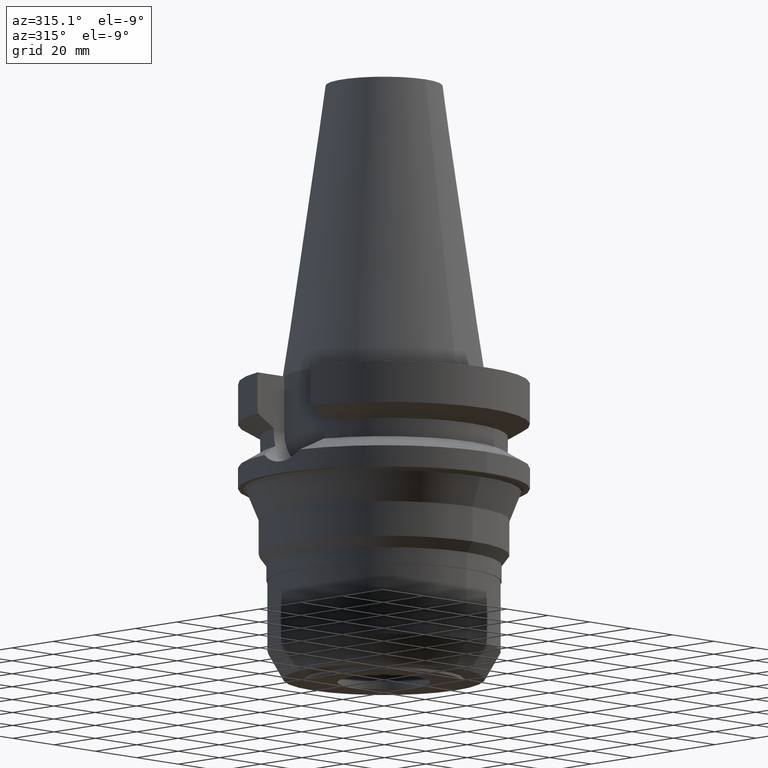
[diagram: clean part render]
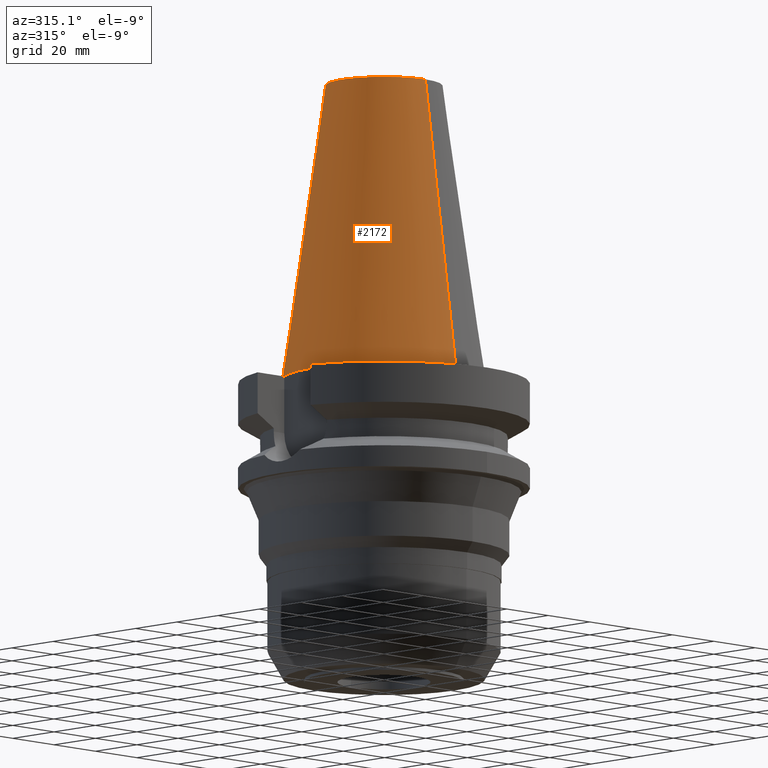
[diagram: same view with one face highlighted and labeled with its STEP entity id]
A machine part, auxiliary view. The second image highlights one B-rep face of the part: STEP entity #2172.
In plain terms, the highlighted conical surface has half-angle 8.297 deg.
Its self-contained STEP definition (entity closure, byte-faithful):
#1068=DIRECTION('',(0.E0,-1.443043893539E-1,-9.895333461856E-1));
#1069=VECTOR('',#1068,1.028767755957E2);
#1070=CARTESIAN_POINT('',(0.E0,-2.007942971896E1,1.018E2));
#1071=LINE('',#1070,#1069);
#1075=CARTESIAN_POINT('',(0.E0,1.847992019913E-14,3.979039320257E-13));
#1076=DIRECTION('',(0.E0,0.E0,-1.E0));
#1077=DIRECTION('',(0.E0,-1.E0,0.E0));
#1078=AXIS2_PLACEMENT_3D('',#1075,#1076,#1077);
#1083=DIRECTION('',(0.E0,1.443043893539E-1,-9.895333461856E-1));
#1084=VECTOR('',#1083,1.028767755957E2);
#1085=CARTESIAN_POINT('',(0.E0,2.007942971896E1,1.018E2));
#1086=LINE('',#1085,#1084);
#1098=CARTESIAN_POINT('',(0.E0,1.847992019913E-14,1.018E2));
#1099=DIRECTION('',(0.E0,0.E0,-1.E0));
#1100=DIRECTION('',(0.E0,-1.E0,0.E0));
#1101=AXIS2_PLACEMENT_3D('',#1098,#1099,#1100);
#1287=CARTESIAN_POINT('',(0.E0,3.4925E1,3.339550858072E-13));
#1288=VERTEX_POINT('',#1287);
#1289=CARTESIAN_POINT('',(0.E0,-3.4925E1,3.339550858072E-13));
#1290=VERTEX_POINT('',#1289);
#1291=CARTESIAN_POINT('',(0.E0,2.007942971896E1,1.018E2));
#1292=VERTEX_POINT('',#1291);
#1293=CARTESIAN_POINT('',(0.E0,-2.007942971896E1,1.018E2));
#1294=VERTEX_POINT('',#1293);
#2158=CARTESIAN_POINT('',(0.E0,1.847992019913E-14,5.09E1));
#2159=DIRECTION('',(0.E0,0.E0,-1.E0));
#2160=DIRECTION('',(0.E0,-1.E0,0.E0));
#2161=AXIS2_PLACEMENT_3D('',#2158,#2159,#2160);
#2162=CONICAL_SURFACE('',#2161,2.750221485948E1,8.297E0);
#2164=ORIENTED_EDGE('',*,*,#2163,.F.);
#2166=ORIENTED_EDGE('',*,*,#2165,.F.);
#2168=ORIENTED_EDGE('',*,*,#2167,.T.);
#2169=ORIENTED_EDGE('',*,*,#2151,.T.);
#2170=EDGE_LOOP('',(#2164,#2166,#2168,#2169));
#2171=FACE_OUTER_BOUND('',#2170,.F.);
#1079=CIRCLE('',#1078,3.4925E1);
#1102=CIRCLE('',#1101,2.007942971896E1);
#2151=EDGE_CURVE('',#1290,#1288,#1079,.T.);
#2163=EDGE_CURVE('',#1292,#1288,#1086,.T.);
#2165=EDGE_CURVE('',#1294,#1292,#1102,.T.);
#2167=EDGE_CURVE('',#1294,#1290,#1071,.T.);
#2172=ADVANCED_FACE('',(#2171),#2162,.T.);